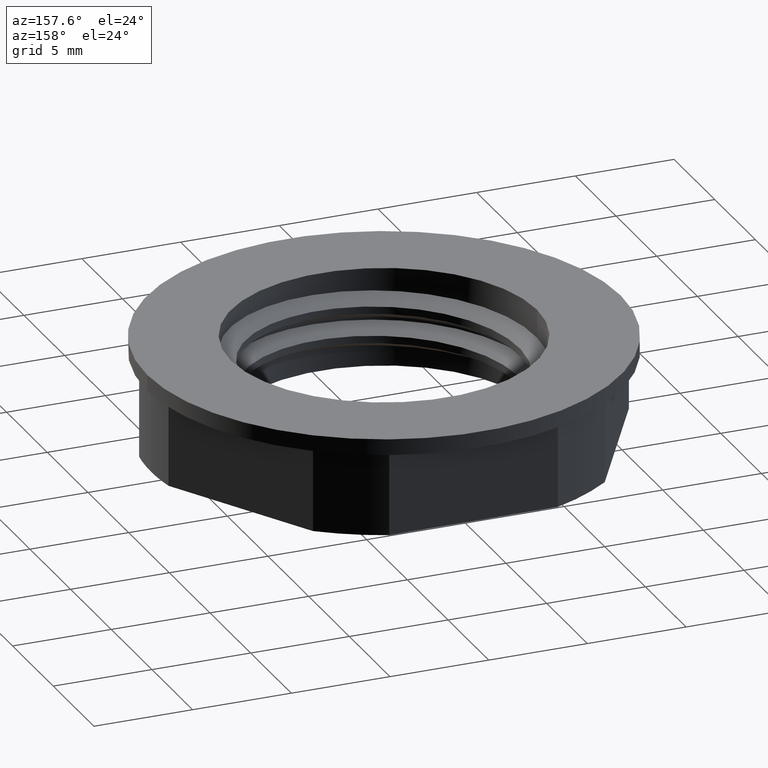
[diagram: clean part render]
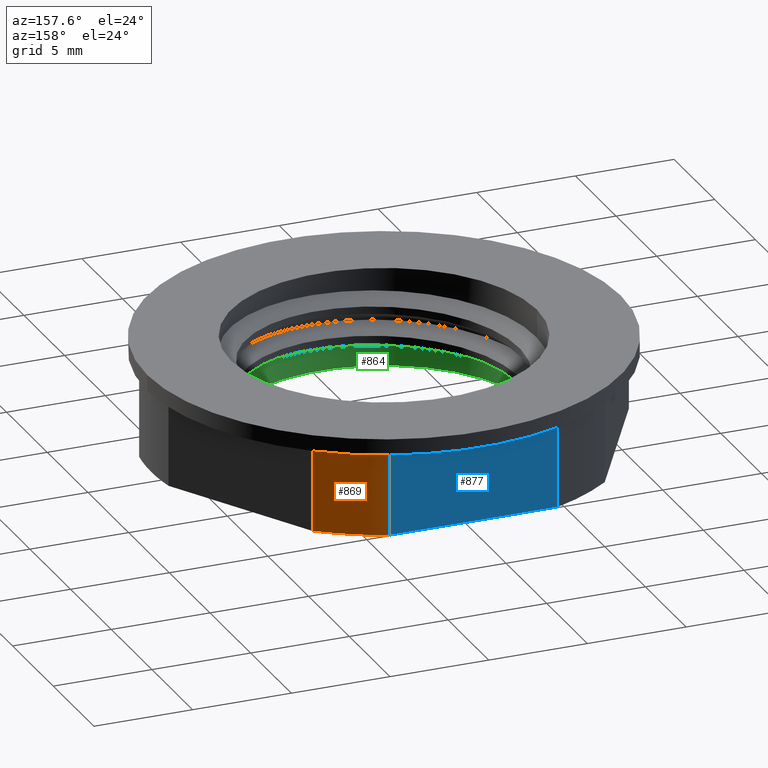
[diagram: same view with three faces highlighted in distinct colors, each labeled with its STEP entity id]
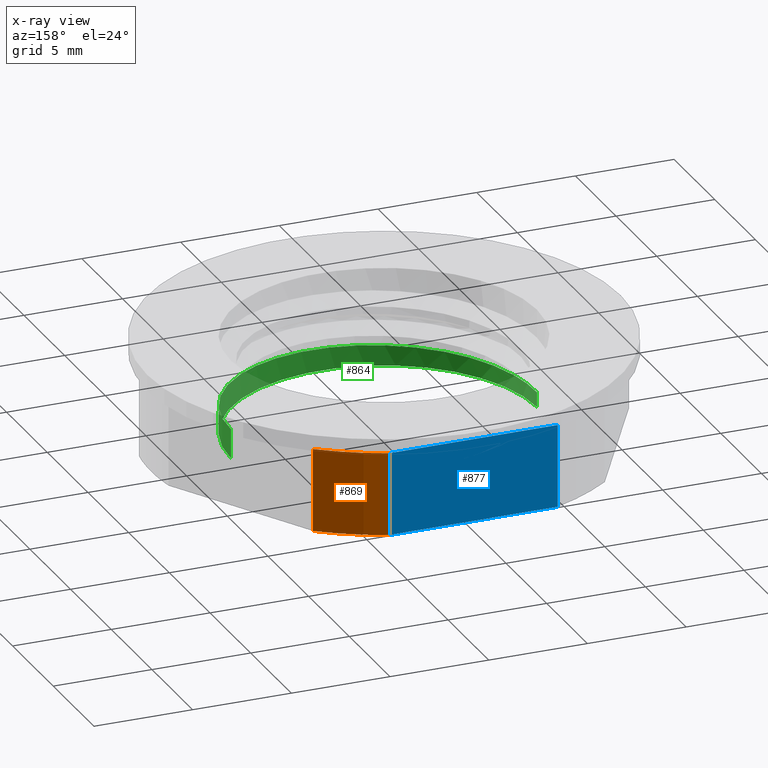
[diagram: x-ray of the same camera — body ghosted, the three highlighted faces saturated]
A machine part, auxiliary view with three faces highlighted in distinct colors.
The next image is the same camera in x-ray (body ghosted, the three faces saturated) — at least one of them is partly hidden behind the body in this view.
Their STEP definitions:

[orange] entity #869 — the highlighted cylindrical surface (partial cylindrical patch) has radius 11.8 mm, axis along (0, 0, 1).
#115 = DIRECTION ( 'NONE',  ( 1.000000000000000000, 3.552713678800500900E-015, 0.0000000000000000000 ) ) ;
#121 = CARTESIAN_POINT ( 'NONE',  ( 0.0000000000000000000, 0.0000000000000000000, 4.200000000000000200 ) ) ;
#122 = DIRECTION ( 'NONE',  ( -0.0000000000000000000, -0.0000000000000000000, -1.000000000000000000 ) ) ;
#196 = LINE ( 'NONE', #197, #1297 ) ;
#197 = CARTESIAN_POINT ( 'NONE',  ( 7.390863791222517200, 9.198648401781426300, 5.000000000000000000 ) ) ;
#201 = DIRECTION ( 'NONE',  ( -0.0000000000000000000, -0.0000000000000000000, -1.000000000000000000 ) ) ;
#320 = DIRECTION ( 'NONE',  ( 0.0000000000000000000, 0.0000000000000000000, 1.000000000000000000 ) ) ;
#331 = DIRECTION ( 'NONE',  ( 0.0000000000000000000, 0.0000000000000000000, 1.000000000000000000 ) ) ;
#343 = CARTESIAN_POINT ( 'NONE',  ( 0.0000000000000000000, 0.0000000000000000000, 0.0000000000000000000 ) ) ;
#354 = LINE ( 'NONE', #358, #1359 ) ;
#358 = CARTESIAN_POINT ( 'NONE',  ( 4.270831300812563600, 10.99999999999998800, 0.0000000000000000000 ) ) ;
#363 = DIRECTION ( 'NONE',  ( 1.000000000000000000, 0.0000000000000000000, 0.0000000000000000000 ) ) ;
#413 = FACE_OUTER_BOUND ( 'NONE', #550, .T. ) ;
#429 = DIRECTION ( 'NONE',  ( 1.000000000000000000, 0.0000000000000000000, 0.0000000000000000000 ) ) ;
#451 = CYLINDRICAL_SURFACE ( 'NONE', #1247, 11.80000000000000200 ) ;
#460 = DIRECTION ( 'NONE',  ( 0.0000000000000000000, 0.0000000000000000000, 1.000000000000000000 ) ) ;
#467 = CARTESIAN_POINT ( 'NONE',  ( 0.0000000000000000000, 0.0000000000000000000, 0.0000000000000000000 ) ) ;
#492 = VERTEX_POINT ( 'NONE', #706 ) ;
#494 = VERTEX_POINT ( 'NONE', #556 ) ;
#538 = VERTEX_POINT ( 'NONE', #750 ) ;
#550 = EDGE_LOOP ( 'NONE', ( #701, #650, #654, #716 ) ) ;
#556 = CARTESIAN_POINT ( 'NONE',  ( 7.390863791222517200, 9.198648401781426300, 0.0000000000000000000 ) ) ;
#566 = VERTEX_POINT ( 'NONE', #744 ) ;
#650 = ORIENTED_EDGE ( 'NONE', *, *, #848, .T. ) ;
#654 = ORIENTED_EDGE ( 'NONE', *, *, #851, .T. ) ;
#701 = ORIENTED_EDGE ( 'NONE', *, *, #907, .T. ) ;
#706 = CARTESIAN_POINT ( 'NONE',  ( 4.270831300812563600, 10.99999999999998900, 4.200000000000000200 ) ) ;
#716 = ORIENTED_EDGE ( 'NONE', *, *, #898, .T. ) ;
#744 = CARTESIAN_POINT ( 'NONE',  ( 7.390863791222517200, 9.198648401781426300, 4.200000000000000200 ) ) ;
#750 = CARTESIAN_POINT ( 'NONE',  ( 4.270831300812563600, 10.99999999999998900, 0.0000000000000000000 ) ) ;
#848 = EDGE_CURVE ( 'NONE', #494, #538, #1368, .T. ) ;
#851 = EDGE_CURVE ( 'NONE', #538, #492, #354, .T. ) ;
#869 = ADVANCED_FACE ( 'NONE', ( #413 ), #451, .T. ) ;
#898 = EDGE_CURVE ( 'NONE', #492, #566, #1281, .T. ) ;
#907 = EDGE_CURVE ( 'NONE', #566, #494, #196, .T. ) ;
#1247 = AXIS2_PLACEMENT_3D ( 'NONE', #467, #460, #429 ) ;
#1281 = CIRCLE ( 'NONE', #1283, 11.80000000000000200 ) ;
#1283 = AXIS2_PLACEMENT_3D ( 'NONE', #121, #122, #115 ) ;
#1297 = VECTOR ( 'NONE', #201, 1000.000000000000000 ) ;
#1359 = VECTOR ( 'NONE', #320, 1000.000000000000000 ) ;
#1368 = CIRCLE ( 'NONE', #1370, 11.80000000000000200 ) ;
#1370 = AXIS2_PLACEMENT_3D ( 'NONE', #343, #331, #363 ) ;

[blue] entity #877 — the highlighted planar face has unit normal (0, -1, 0).
#296 = CARTESIAN_POINT ( 'NONE',  ( -4.270831300812563600, 10.99999999999998900, 5.000000000000000000 ) ) ;
#310 = LINE ( 'NONE', #296, #1340 ) ;
#311 = DIRECTION ( 'NONE',  ( 0.0000000000000000000, -0.0000000000000000000, -1.000000000000000000 ) ) ;
#320 = DIRECTION ( 'NONE',  ( 0.0000000000000000000, 0.0000000000000000000, 1.000000000000000000 ) ) ;
#354 = LINE ( 'NONE', #358, #1359 ) ;
#358 = CARTESIAN_POINT ( 'NONE',  ( 4.270831300812563600, 10.99999999999998800, 0.0000000000000000000 ) ) ;
#437 = CARTESIAN_POINT ( 'NONE',  ( 6.350852961085867500, 10.99999999999998900, 5.000000000000000000 ) ) ;
#439 = DIRECTION ( 'NONE',  ( 1.000000000000000000, 0.0000000000000000000, -0.0000000000000000000 ) ) ;
#457 = PLANE ( 'NONE',  #1266 ) ;
#463 = DIRECTION ( 'NONE',  ( 0.0000000000000000000, -1.000000000000000000, 0.0000000000000000000 ) ) ;
#469 = DIRECTION ( 'NONE',  ( 0.0000000000000000000, -0.0000000000000000000, -1.000000000000000000 ) ) ;
#472 = CARTESIAN_POINT ( 'NONE',  ( 0.0000000000000000000, 10.99999999999998900, 4.200000000000000200 ) ) ;
#475 = FACE_OUTER_BOUND ( 'NONE', #541, .T. ) ;
#476 = LINE ( 'NONE', #472, #1248 ) ;
#492 = VERTEX_POINT ( 'NONE', #706 ) ;
#513 = VERTEX_POINT ( 'NONE', #734 ) ;
#528 = VERTEX_POINT ( 'NONE', #729 ) ;
#538 = VERTEX_POINT ( 'NONE', #750 ) ;
#541 = EDGE_LOOP ( 'NONE', ( #634, #676, #646, #700 ) ) ;
#634 = ORIENTED_EDGE ( 'NONE', *, *, #851, .F. ) ;
#646 = ORIENTED_EDGE ( 'NONE', *, *, #839, .F. ) ;
#676 = ORIENTED_EDGE ( 'NONE', *, *, #815, .F. ) ;
#700 = ORIENTED_EDGE ( 'NONE', *, *, #867, .T. ) ;
#706 = CARTESIAN_POINT ( 'NONE',  ( 4.270831300812563600, 10.99999999999998900, 4.200000000000000200 ) ) ;
#729 = CARTESIAN_POINT ( 'NONE',  ( -4.270831300812563600, 10.99999999999998900, 4.200000000000000200 ) ) ;
#734 = CARTESIAN_POINT ( 'NONE',  ( -4.270831300812563600, 10.99999999999998900, 0.0000000000000000000 ) ) ;
#750 = CARTESIAN_POINT ( 'NONE',  ( 4.270831300812563600, 10.99999999999998900, 0.0000000000000000000 ) ) ;
#771 = LINE ( 'NONE', #777, #1314 ) ;
#776 = DIRECTION ( 'NONE',  ( 1.000000000000000000, 0.0000000000000000000, 0.0000000000000000000 ) ) ;
#777 = CARTESIAN_POINT ( 'NONE',  ( 6.350852961085867500, 10.99999999999998900, 0.0000000000000000000 ) ) ;
#815 = EDGE_CURVE ( 'NONE', #513, #538, #771, .T. ) ;
#839 = EDGE_CURVE ( 'NONE', #528, #513, #310, .T. ) ;
#851 = EDGE_CURVE ( 'NONE', #538, #492, #354, .T. ) ;
#867 = EDGE_CURVE ( 'NONE', #528, #492, #476, .T. ) ;
#877 = ADVANCED_FACE ( 'NONE', ( #475 ), #457, .F. ) ;
#1248 = VECTOR ( 'NONE', #439, 1000.000000000000000 ) ;
#1266 = AXIS2_PLACEMENT_3D ( 'NONE', #437, #463, #469 ) ;
#1314 = VECTOR ( 'NONE', #776, 1000.000000000000000 ) ;
#1340 = VECTOR ( 'NONE', #311, 1000.000000000000000 ) ;
#1359 = VECTOR ( 'NONE', #320, 1000.000000000000000 ) ;

[green] entity #864 — the highlighted cylindrical surface (partial cylindrical patch) has radius 7.75 mm, axis along (0, 0, 1).
#205 =( BOUNDED_CURVE ( )  B_SPLINE_CURVE ( 2, ( #791, #792, #788, #789, #790, #793, #794, #795, #796 ),
 .UNSPECIFIED., .F., .T. ) 
 B_SPLINE_CURVE_WITH_KNOTS ( ( 3, 2, 2, 2, 3 ),
 ( 0.06497676838299676300, 0.07106881989524985200, 0.07716087140750294000, 0.08325292291975602800, 0.08934497443200913000 ),
 .UNSPECIFIED. ) 
 CURVE ( )  GEOMETRIC_REPRESENTATION_ITEM ( )  RATIONAL_B_SPLINE_CURVE ( ( 1.000000000000000200, 0.9238795325112865200, 1.000000000000000000, 0.9238795325112867400, 1.000000000000000000, 0.9238795325112867400, 1.000000000000000000, 0.9238795325113253700, 0.9999999999999613600 ) ) 
 REPRESENTATION_ITEM ( '' )  );
#224 = LINE ( 'NONE', #258, #1317 ) ;
#255 = DIRECTION ( 'NONE',  ( 0.0000000000000000000, 0.0000000000000000000, 1.000000000000000000 ) ) ;
#258 = CARTESIAN_POINT ( 'NONE',  ( 7.750000000000000000, 0.0000000000000000000, 0.0000000000000000000 ) ) ;
#270 = LINE ( 'NONE', #295, #1337 ) ;
#287 = DIRECTION ( 'NONE',  ( -0.0000000000000000000, 0.0000000000000000000, 1.000000000000000000 ) ) ;
#295 = CARTESIAN_POINT ( 'NONE',  ( -7.750000000000000000, 9.491012693391987800E-016, 0.0000000000000000000 ) ) ;
#299 = CARTESIAN_POINT ( 'NONE',  ( 7.750000000000000000, 0.0000000000000000000, 0.2343749989758049400 ) ) ;
#303 = LINE ( 'NONE', #299, #1352 ) ;
#309 = DIRECTION ( 'NONE',  ( 0.0000000000000000000, 0.0000000000000000000, 1.000000000000000000 ) ) ;
#337 = FACE_OUTER_BOUND ( 'NONE', #481, .T. ) ;
#386 = CARTESIAN_POINT ( 'NONE',  ( 0.0000000000000000000, 0.0000000000000000000, 0.0000000000000000000 ) ) ;
#400 = DIRECTION ( 'NONE',  ( 1.000000000000000000, 0.0000000000000000000, 0.0000000000000000000 ) ) ;
#406 = DIRECTION ( 'NONE',  ( 0.0000000000000000000, 0.0000000000000000000, 1.000000000000000000 ) ) ;
#414 = CYLINDRICAL_SURFACE ( 'NONE', #1253, 7.750000000000000000 ) ;
#481 = EDGE_LOOP ( 'NONE', ( #620, #645, #671, #672, #666 ) ) ;
#491 = VERTEX_POINT ( 'NONE', #717 ) ;
#505 = VERTEX_POINT ( 'NONE', #720 ) ;
#523 = VERTEX_POINT ( 'NONE', #736 ) ;
#531 = VERTEX_POINT ( 'NONE', #749 ) ;
#548 = VERTEX_POINT ( 'NONE', #741 ) ;
#620 = ORIENTED_EDGE ( 'NONE', *, *, #812, .F. ) ;
#645 = ORIENTED_EDGE ( 'NONE', *, *, #837, .T. ) ;
#666 = ORIENTED_EDGE ( 'NONE', *, *, #841, .F. ) ;
#671 = ORIENTED_EDGE ( 'NONE', *, *, #818, .F. ) ;
#672 = ORIENTED_EDGE ( 'NONE', *, *, #822, .F. ) ;
#717 = CARTESIAN_POINT ( 'NONE',  ( -7.750000000000000000, -8.564688518746355500E-013, 0.7500000000000250900 ) ) ;
#720 = CARTESIAN_POINT ( 'NONE',  ( -7.750000000000000000, 9.491012693391987800E-016, 0.0000000000000000000 ) ) ;
#736 = CARTESIAN_POINT ( 'NONE',  ( 7.750000000000000000, 0.0000000000000000000, 1.312499995903220400 ) ) ;
#741 = CARTESIAN_POINT ( 'NONE',  ( 7.750000000000000000, 0.0000000000000000000, 1.500000000000000000 ) ) ;
#749 = CARTESIAN_POINT ( 'NONE',  ( 7.750000000000000000, -9.491012693391987800E-016, -5.421010862427522200E-017 ) ) ;
#773 = CARTESIAN_POINT ( 'NONE',  ( 0.0000000000000000000, 0.0000000000000000000, 0.0000000000000000000 ) ) ;
#774 = DIRECTION ( 'NONE',  ( 0.0000000000000000000, 0.0000000000000000000, 1.000000000000000000 ) ) ;
#779 = DIRECTION ( 'NONE',  ( 1.000000000000000000, 0.0000000000000000000, 0.0000000000000000000 ) ) ;
#788 = CARTESIAN_POINT ( 'NONE',  ( 5.480077554196308900, -5.480077554196310700, 1.312499999999537500 ) ) ;
#789 = CARTESIAN_POINT ( 'NONE',  ( 3.210155108391820700, -7.750000000000801100, 1.218749999999537700 ) ) ;
#790 = CARTESIAN_POINT ( 'NONE',  ( -1.423651904008945200E-015, -7.750000000000801100, 1.124999999999537900 ) ) ;
#791 = CARTESIAN_POINT ( 'NONE',  ( 7.750000000000000000, 0.0000000000000000000, 1.500000000000000000 ) ) ;
#792 = CARTESIAN_POINT ( 'NONE',  ( 7.750000000000806500, -3.210155108391817200, 1.406249999999537700 ) ) ;
#793 = CARTESIAN_POINT ( 'NONE',  ( -3.210155108391822900, -7.750000000000799400, 1.031249999999537300 ) ) ;
#794 = CARTESIAN_POINT ( 'NONE',  ( -5.480077554196310700, -5.480077554196308900, 0.9374999999995374800 ) ) ;
#795 = CARTESIAN_POINT ( 'NONE',  ( -7.749999999999556800, -3.210155108393064600, 0.8437499999995887700 ) ) ;
#796 = CARTESIAN_POINT ( 'NONE',  ( -7.750000000000000000, -8.564688518746355500E-013, 0.7500000000000250900 ) ) ;
#812 = EDGE_CURVE ( 'NONE', #505, #531, #1330, .T. ) ;
#818 = EDGE_CURVE ( 'NONE', #548, #491, #205, .T. ) ;
#822 = EDGE_CURVE ( 'NONE', #523, #548, #224, .T. ) ;
#837 = EDGE_CURVE ( 'NONE', #505, #491, #270, .T. ) ;
#841 = EDGE_CURVE ( 'NONE', #531, #523, #303, .T. ) ;
#864 = ADVANCED_FACE ( 'NONE', ( #337 ), #414, .F. ) ;
#1253 = AXIS2_PLACEMENT_3D ( 'NONE', #386, #406, #400 ) ;
#1317 = VECTOR ( 'NONE', #255, 1000.000000000000000 ) ;
#1325 = AXIS2_PLACEMENT_3D ( 'NONE', #773, #774, #779 ) ;
#1330 = CIRCLE ( 'NONE', #1325, 7.750000000000000000 ) ;
#1337 = VECTOR ( 'NONE', #309, 1000.000000000000000 ) ;
#1352 = VECTOR ( 'NONE', #287, 1000.000000000000000 ) ;